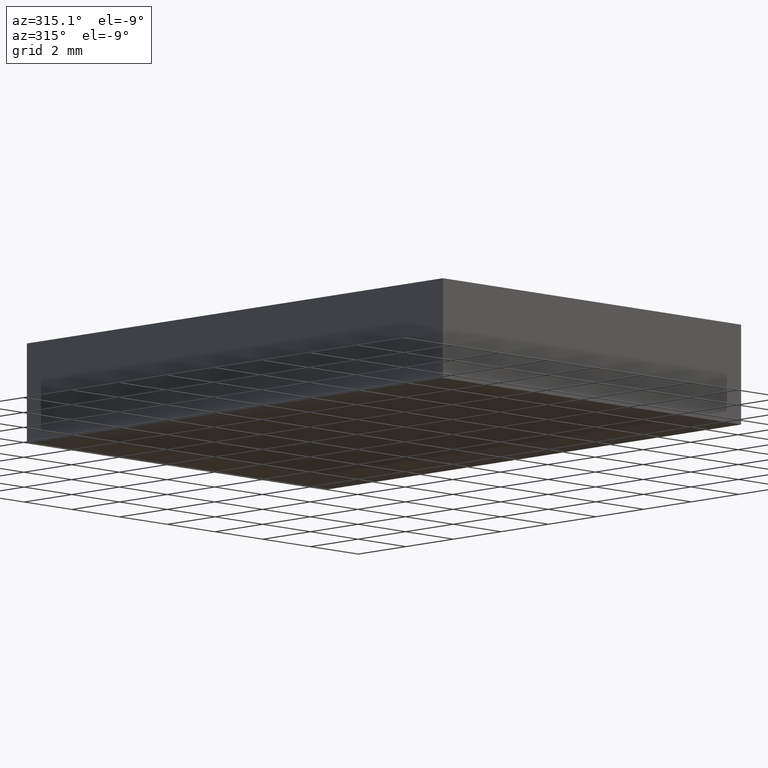
[diagram: clean part render]
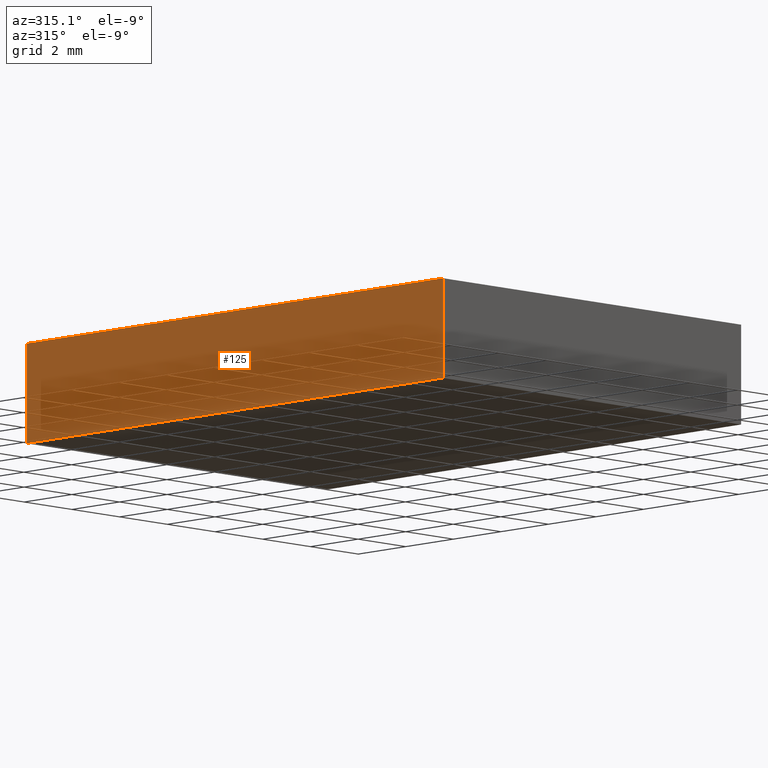
[diagram: same view with one face highlighted and labeled with its STEP entity id]
A machine part, auxiliary view. The second image highlights one B-rep face of the part: STEP entity #125.
In plain terms, the highlighted planar face has unit normal (1, 0, -0).
Its self-contained STEP definition (entity closure, byte-faithful):
#10 = VERTEX_POINT ( 'NONE', #37 ) ;
#15 = CARTESIAN_POINT ( 'NONE',  ( -6.351626016260162500, 7.520325203252024700, 3.000000000000000000 ) ) ;
#18 = CARTESIAN_POINT ( 'NONE',  ( -6.351626016260160800, -9.979674796747977100, 3.000000000000000000 ) ) ;
#37 = CARTESIAN_POINT ( 'NONE',  ( -6.351626016260160800, -9.979674796747977100, 0.0000000000000000000 ) ) ;
#47 = DIRECTION ( 'NONE',  ( 9.912705577010325500E-017, -1.000000000000000000, 0.0000000000000000000 ) ) ;
#48 = LINE ( 'NONE', #15, #293 ) ;
#49 = CARTESIAN_POINT ( 'NONE',  ( -6.351626016260162500, 7.520325203252024700, 0.0000000000000000000 ) ) ;
#62 = EDGE_CURVE ( 'NONE', #68, #164, #48, .T. ) ;
#65 = CARTESIAN_POINT ( 'NONE',  ( -6.351626016260162500, 7.520325203252024700, 3.000000000000000000 ) ) ;
#68 = VERTEX_POINT ( 'NONE', #65 ) ;
#73 = DIRECTION ( 'NONE',  ( 1.000000000000000000, 9.912705577010325500E-017, -0.0000000000000000000 ) ) ;
#74 = CARTESIAN_POINT ( 'NONE',  ( -6.351626016260162500, 7.520325203252024700, 3.000000000000000000 ) ) ;
#86 = EDGE_CURVE ( 'NONE', #160, #10, #281, .T. ) ;
#88 = ORIENTED_EDGE ( 'NONE', *, *, #304, .T. ) ;
#94 = PLANE ( 'NONE',  #152 ) ;
#97 = CARTESIAN_POINT ( 'NONE',  ( -6.351626016260162500, 7.520325203252024700, 3.000000000000000000 ) ) ;
#100 = ORIENTED_EDGE ( 'NONE', *, *, #161, .F. ) ;
#116 = EDGE_LOOP ( 'NONE', ( #136, #100, #172, #88 ) ) ;
#122 = VECTOR ( 'NONE', #180, 1000.000000000000000 ) ;
#125 = ADVANCED_FACE ( 'NONE', ( #175 ), #94, .F. ) ;
#136 = ORIENTED_EDGE ( 'NONE', *, *, #86, .T. ) ;
#147 = CARTESIAN_POINT ( 'NONE',  ( -6.351626016260162500, 7.520325203252024700, 0.0000000000000000000 ) ) ;
#150 = VECTOR ( 'NONE', #311, 1000.000000000000000 ) ;
#152 = AXIS2_PLACEMENT_3D ( 'NONE', #74, #73, #240 ) ;
#160 = VERTEX_POINT ( 'NONE', #147 ) ;
#161 = EDGE_CURVE ( 'NONE', #164, #10, #216, .T. ) ;
#164 = VERTEX_POINT ( 'NONE', #18 ) ;
#172 = ORIENTED_EDGE ( 'NONE', *, *, #62, .F. ) ;
#175 = FACE_OUTER_BOUND ( 'NONE', #116, .T. ) ;
#180 = DIRECTION ( 'NONE',  ( -0.0000000000000000000, -0.0000000000000000000, -1.000000000000000000 ) ) ;
#188 = DIRECTION ( 'NONE',  ( 9.912705577010325500E-017, -1.000000000000000000, 0.0000000000000000000 ) ) ;
#192 = CARTESIAN_POINT ( 'NONE',  ( -6.351626016260160800, -9.979674796747977100, 3.000000000000000000 ) ) ;
#204 = VECTOR ( 'NONE', #47, 1000.000000000000000 ) ;
#216 = LINE ( 'NONE', #192, #150 ) ;
#240 = DIRECTION ( 'NONE',  ( -9.912705577010325500E-017, 1.000000000000000000, 0.0000000000000000000 ) ) ;
#248 = LINE ( 'NONE', #97, #122 ) ;
#281 = LINE ( 'NONE', #49, #204 ) ;
#293 = VECTOR ( 'NONE', #188, 1000.000000000000000 ) ;
#304 = EDGE_CURVE ( 'NONE', #68, #160, #248, .T. ) ;
#311 = DIRECTION ( 'NONE',  ( -0.0000000000000000000, -0.0000000000000000000, -1.000000000000000000 ) ) ;